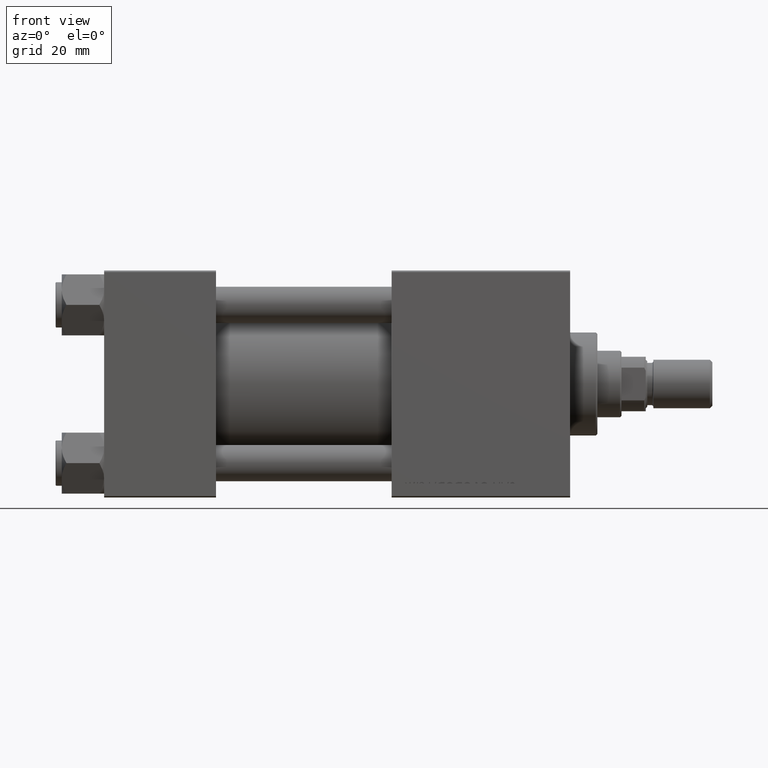
[diagram: clean part render]
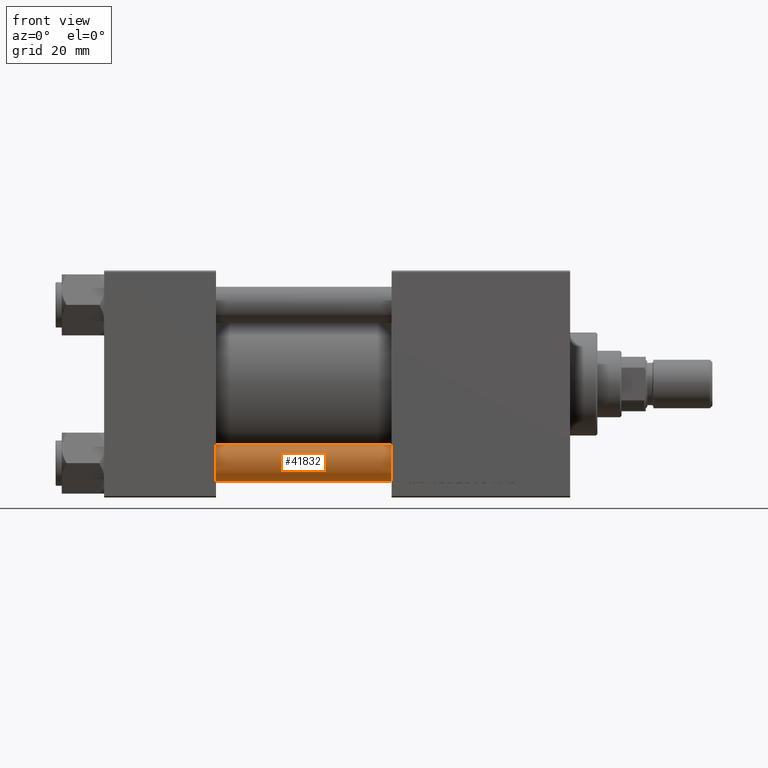
[diagram: same view with one face highlighted and labeled with its STEP entity id]
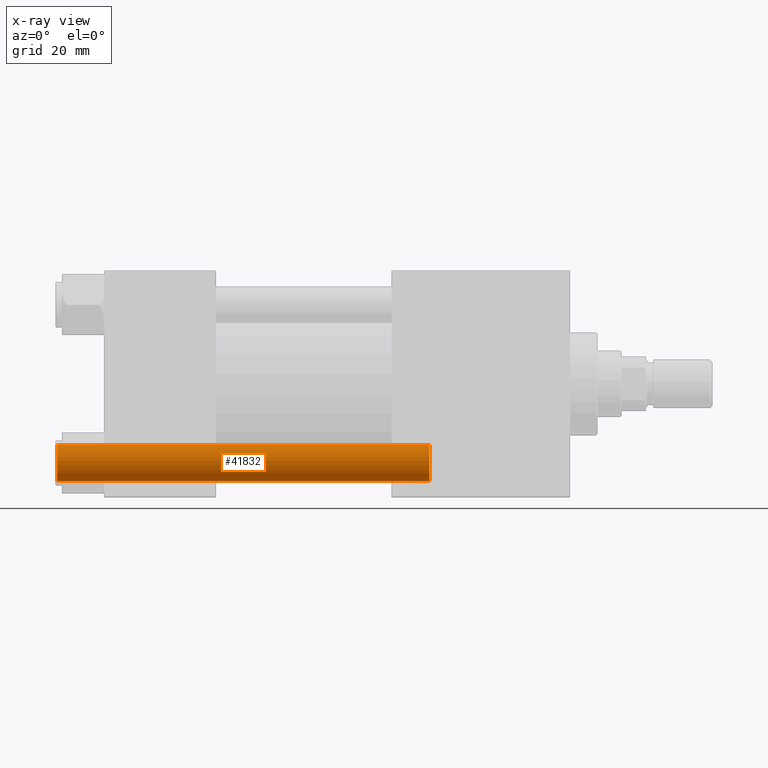
[diagram: x-ray of the same camera — body ghosted, the highlighted face saturated]
A machine part, front view. The second image highlights one B-rep face of the part: STEP entity #41832.
The next image is the same camera in x-ray: the body ghosted, the highlighted face saturated — about 0% of this face is hidden behind the body in this view.
In plain terms, the highlighted cylindrical surface (edge-blend (fillet) strip) has radius 6 mm, axis along (-1, 0, -0).
Its self-contained STEP definition (entity closure, byte-faithful):
#2016 = ORIENTED_EDGE ( 'NONE', *, *, #31150, .T. ) ;
#2983 = EDGE_LOOP ( 'NONE', ( #2016, #43234, #30746, #24251 ) ) ;
#4662 = FACE_OUTER_BOUND ( 'NONE', #2983, .T. ) ;
#6452 = LINE ( 'NONE', #18477, #11774 ) ;
#7788 = AXIS2_PLACEMENT_3D ( 'NONE', #20274, #35887, #47679 ) ;
#7846 = DIRECTION ( 'NONE',  ( -0.000000000000000000, -0.000000000000000000, 1.000000000000000000 ) ) ;
#9157 = VERTEX_POINT ( 'NONE', #18282 ) ;
#9777 = EDGE_CURVE ( 'NONE', #25915, #19051, #13467, .T. ) ;
#10347 = LINE ( 'NONE', #40376, #11393 ) ;
#11393 = VECTOR ( 'NONE', #13921, 1000.000000000000000 ) ;
#11774 = VECTOR ( 'NONE', #22301, 1000.000000000000000 ) ;
#13467 = CIRCLE ( 'NONE', #14276, 6.000000000000000888 ) ;
#13921 = DIRECTION ( 'NONE',  ( -0.000000000000000000, -0.000000000000000000, -1.000000000000000000 ) ) ;
#14276 = AXIS2_PLACEMENT_3D ( 'NONE', #39095, #7846, #39832 ) ;
#14513 = CARTESIAN_POINT ( 'NONE',  ( 6.000000000000000888, 7.347880794884120722E-16, 0.4999999999999865663 ) ) ;
#15701 = CYLINDRICAL_SURFACE ( 'NONE', #7788, 6.000000000000000888 ) ;
#18282 = CARTESIAN_POINT ( 'NONE',  ( 6.000000000000000888, 7.347880794884120722E-16, 123.5000000000000426 ) ) ;
#18477 = CARTESIAN_POINT ( 'NONE',  ( 6.000000000000000888, 7.347880794884120722E-16, 124.0000000000000000 ) ) ;
#19051 = VERTEX_POINT ( 'NONE', #24494 ) ;
#20274 = CARTESIAN_POINT ( 'NONE',  ( 0.000000000000000000, 0.000000000000000000, 124.0000000000000000 ) ) ;
#22301 = DIRECTION ( 'NONE',  ( -0.000000000000000000, -0.000000000000000000, -1.000000000000000000 ) ) ;
#24251 = ORIENTED_EDGE ( 'NONE', *, *, #28509, .F. ) ;
#24494 = CARTESIAN_POINT ( 'NONE',  ( -6.000000000000000888, 0.000000000000000000, 0.4999999999999865663 ) ) ;
#24942 = CARTESIAN_POINT ( 'NONE',  ( 0.000000000000000000, 0.000000000000000000, 123.5000000000000426 ) ) ;
#25915 = VERTEX_POINT ( 'NONE', #14513 ) ;
#28509 = EDGE_CURVE ( 'NONE', #44726, #19051, #10347, .T. ) ;
#30746 = ORIENTED_EDGE ( 'NONE', *, *, #9777, .T. ) ;
#31150 = EDGE_CURVE ( 'NONE', #44726, #9157, #40070, .T. ) ;
#35580 = EDGE_CURVE ( 'NONE', #9157, #25915, #6452, .T. ) ;
#35887 = DIRECTION ( 'NONE',  ( -0.000000000000000000, -0.000000000000000000, -1.000000000000000000 ) ) ;
#37626 = AXIS2_PLACEMENT_3D ( 'NONE', #24942, #49283, #40594 ) ;
#38592 = CARTESIAN_POINT ( 'NONE',  ( -6.000000000000000888, 0.000000000000000000, 123.5000000000000426 ) ) ;
#39095 = CARTESIAN_POINT ( 'NONE',  ( 0.000000000000000000, 0.000000000000000000, 0.4999999999999865663 ) ) ;
#39832 = DIRECTION ( 'NONE',  ( 1.000000000000000000, 0.000000000000000000, 0.000000000000000000 ) ) ;
#40070 = CIRCLE ( 'NONE', #37626, 6.000000000000000888 ) ;
#40376 = CARTESIAN_POINT ( 'NONE',  ( -6.000000000000000888, 0.000000000000000000, 124.0000000000000000 ) ) ;
#40594 = DIRECTION ( 'NONE',  ( 1.000000000000000000, 0.000000000000000000, 0.000000000000000000 ) ) ;
#41832 = ADVANCED_FACE ( 'NONE', ( #4662 ), #15701, .T. ) ;
#43234 = ORIENTED_EDGE ( 'NONE', *, *, #35580, .T. ) ;
#44726 = VERTEX_POINT ( 'NONE', #38592 ) ;
#47679 = DIRECTION ( 'NONE',  ( -1.000000000000000000, 0.000000000000000000, 0.000000000000000000 ) ) ;
#49283 = DIRECTION ( 'NONE',  ( 0.000000000000000000, 0.000000000000000000, -1.000000000000000000 ) ) ;